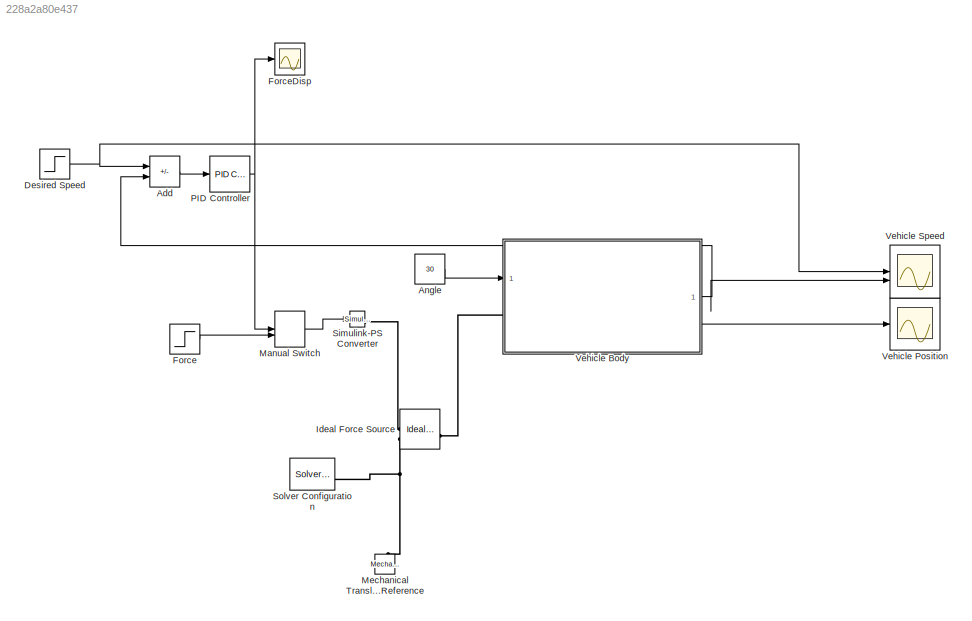
MODEL slx_228a2a80e437
KIND model
CONFIG AbsTol = 1e-3
CONFIG EnableMultiTasking = off
CONFIG FixedStep = auto
CONFIG MaxStep = auto
CONFIG MinStep = auto
CONFIG RelTol = 1e-3
CONFIG SampleTimeConstraint = Unconstrained
CONFIG SolverName = ode15s
CONFIG StartTime = 0.0
CONFIG StopTime = 30
BLOCK [Sum] Add
  IconShape = rectangular
  Inputs = +-
BLOCK [Constant] Angle
  Value = 30
BLOCK [Step] Desired Speed
  After = 15
  Before = 15
  SampleTime = 0
BLOCK [Step] Force
  After = 7000
  SampleTime = 0
BLOCK [Scope] ForceDisp
  Floating = off
  NumInputPorts = 1
  ScopeSpecificationString = Simulink.scopes.TimeScopeBlockCfg('CurrentConfiguration', extmgr.ConfigurationSet(extmgr.Configuration('Core','General UI',true),extmgr.Configuration('Core','Source UI',true),extmgr.Configuration('Sources','WiredSimulink',true,'DataLoggingVariableName','ScopeData2'),extmgr.Configuration('Visuals','Time Domain',true,'SerializedDisplays',{struct('MinYLimReal','-7969.2187','MaxYLimReal','71737.96828'...<+1486ch>
BLOCK [Reference] Ideal Force Source  REF=fl_lib/Mechanical/Mechanical Sources/Ideal Force Source
  SourceBlock = fl_lib/Mechanical/Mechanical Sources/Ideal Force Source
  SourceType = Ideal Force Source
BLOCK [ManualSwitch] Manual Switch
BLOCK [Reference] Mechanical Translational Reference  REF=fl_lib/Mechanical/Translational
Elements/Mechanical
Translational
Reference
  NameLocation = right
  SourceBlock = fl_lib/Mechanical/Translational\nElements/Mechanical\nTranslational\nReference
  SourceType = Mechanical\nTranslational\nReference
BLOCK [Reference] PID Controller  REF=slpidlib/PID Controller
  LibrarySourceBlock = simulink/Continuous/PID Controller
  SourceBlock = slpidlib/PID Controller
  SourceType = PID 1dof
BLOCK [Reference] Simulink-PS Converter  REF=nesl_utility/Simulink-PS
Converter
  SourceBlock = nesl_utility/Simulink-PS\nConverter
  SourceType = Simulink-PS\nConverter
BLOCK [Reference] Solver Configuration  REF=nesl_utility/Solver
Configuration
  SourceBlock = nesl_utility/Solver\nConfiguration
  SourceType = Solver\nConfiguration
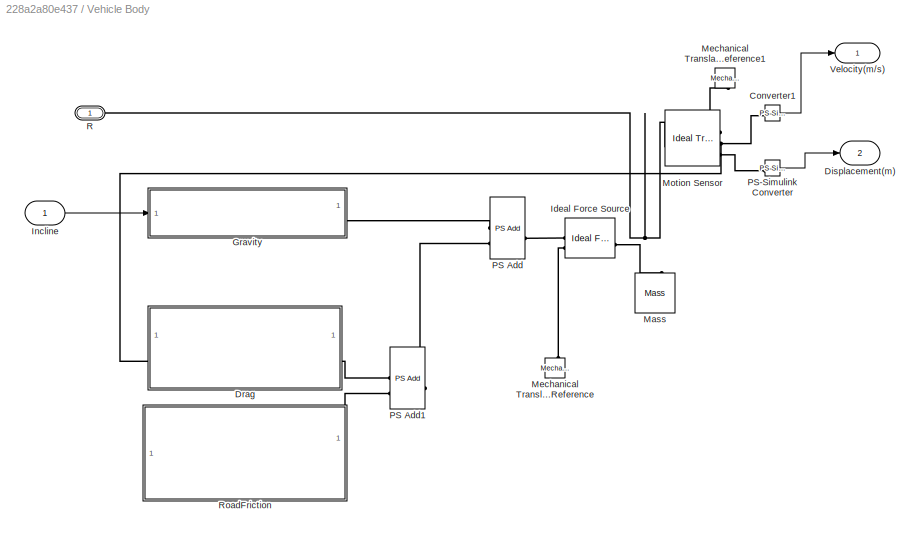
BLOCK [SubSystem] Vehicle Body
BLOCK [Reference] Vehicle Body/Converter1  REF=nesl_utility/PS-Simulink
Converter
  SourceBlock = nesl_utility/PS-Simulink\nConverter
  SourceType = PS-Simulink\nConverter
BLOCK [Outport] Vehicle Body/Displacement(m)
  Port = 2
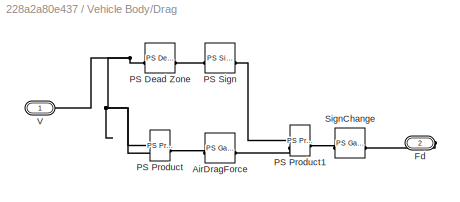
BLOCK [SubSystem] Vehicle Body/Drag
BLOCK [Reference] Vehicle Body/Drag/AirDragForce  REF=fl_lib/Physical Signals/Functions/PS Gain
  SourceBlock = fl_lib/Physical Signals/Functions/PS Gain
  SourceType = PS Gain
BLOCK [PMIOPort] Vehicle Body/Drag/Fd
  Port = 2
  Side = Right
BLOCK [Reference] Vehicle Body/Drag/PS Dead Zone  REF=fl_lib/Physical Signals/Nonlinear Operators/PS Dead Zone
  SourceBlock = fl_lib/Physical Signals/Nonlinear Operators/PS Dead Zone
  SourceType = PS Dead Zone
BLOCK [Reference] Vehicle Body/Drag/PS Product  REF=fl_lib/Physical Signals/Functions/PS Product
  SourceBlock = fl_lib/Physical Signals/Functions/PS Product
  SourceType = PS Product
BLOCK [Reference] Vehicle Body/Drag/PS Product1  REF=fl_lib/Physical Signals/Functions/PS Product
  SourceBlock = fl_lib/Physical Signals/Functions/PS Product
  SourceType = PS Product
BLOCK [Reference] Vehicle Body/Drag/PS Sign  REF=fl_lib/Physical Signals/Nonlinear Operators/PS Sign
  SourceBlock = fl_lib/Physical Signals/Nonlinear Operators/PS Sign
  SourceType = PS Sign
BLOCK [Reference] Vehicle Body/Drag/SignChange  REF=fl_lib/Physical Signals/Functions/PS Gain
  SourceBlock = fl_lib/Physical Signals/Functions/PS Gain
  SourceType = PS Gain
BLOCK [PMIOPort] Vehicle Body/Drag/V
  Side = Left
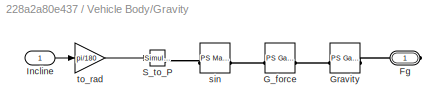
BLOCK [SubSystem] Vehicle Body/Gravity
BLOCK [PMIOPort] Vehicle Body/Gravity/Fg
  Side = Right
BLOCK [Reference] Vehicle Body/Gravity/G_force  REF=fl_lib/Physical Signals/Functions/PS Gain
  SourceBlock = fl_lib/Physical Signals/Functions/PS Gain
  SourceType = PS Gain
BLOCK [Reference] Vehicle Body/Gravity/Gravity  REF=fl_lib/Physical Signals/Functions/PS Gain
  SourceBlock = fl_lib/Physical Signals/Functions/PS Gain
  SourceType = PS Gain
BLOCK [Inport] Vehicle Body/Gravity/Incline
BLOCK [Reference] Vehicle Body/Gravity/S_to_P  REF=nesl_utility/Simulink-PS
Converter
  SourceBlock = nesl_utility/Simulink-PS\nConverter
  SourceType = Simulink-PS\nConverter
BLOCK [Reference] Vehicle Body/Gravity/sin  REF=fl_lib/Physical Signals/Functions/PS Math Function
  SourceBlock = fl_lib/Physical Signals/Functions/PS Math Function
  SourceType = PS Math Function
BLOCK [Gain] Vehicle Body/Gravity/to_rad
  Gain = pi/180
BLOCK [Reference] Vehicle Body/Ideal Force Source  REF=fl_lib/Mechanical/Mechanical Sources/Ideal Force Source
  SourceBlock = fl_lib/Mechanical/Mechanical Sources/Ideal Force Source
  SourceType = Ideal Force Source
BLOCK [Inport] Vehicle Body/Incline
BLOCK [Reference] Vehicle Body/Mass  REF=fl_lib/Mechanical/Translational
Elements/Mass
  NameLocation = right
  SourceBlock = fl_lib/Mechanical/Translational\nElements/Mass
  SourceType = Mass
BLOCK [Reference] Vehicle Body/Mechanical Translational Reference  REF=fl_lib/Mechanical/Translational
Elements/Mechanical
Translational
Reference
  NameLocation = right
  SourceBlock = fl_lib/Mechanical/Translational\nElements/Mechanical\nTranslational\nReference
  SourceType = Mechanical\nTranslational\nReference
BLOCK [Reference] Vehicle Body/Mechanical Translational Reference1  REF=fl_lib/Mechanical/Translational
Elements/Mechanical
Translational
Reference
  NameLocation = left
  SourceBlock = fl_lib/Mechanical/Translational\nElements/Mechanical\nTranslational\nReference
  SourceType = Mechanical\nTranslational\nReference
BLOCK [Reference] Vehicle Body/Motion Sensor  REF=fl_lib/Mechanical/Mechanical Sensors/Ideal Translational
Motion Sensor
  SourceBlock = fl_lib/Mechanical/Mechanical Sensors/Ideal Translational\nMotion Sensor
  SourceType = Ideal Translational\nMotion Sensor
BLOCK [Reference] Vehicle Body/PS Add  REF=fl_lib/Physical Signals/Functions/PS Add
  SourceBlock = fl_lib/Physical Signals/Functions/PS Add
  SourceType = PS Add
BLOCK [Reference] Vehicle Body/PS Add1  REF=fl_lib/Physical Signals/Functions/PS Add
  SourceBlock = fl_lib/Physical Signals/Functions/PS Add
  SourceType = PS Add
BLOCK [Reference] Vehicle Body/PS-Simulink Converter  REF=nesl_utility/PS-Simulink
Converter
  SourceBlock = nesl_utility/PS-Simulink\nConverter
  SourceType = PS-Simulink\nConverter
BLOCK [PMIOPort] Vehicle Body/R
  Side = Left
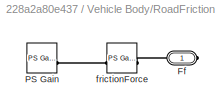
BLOCK [SubSystem] Vehicle Body/RoadFriction
BLOCK [PMIOPort] Vehicle Body/RoadFriction/Ff
  Side = Right
BLOCK [Reference] Vehicle Body/RoadFriction/PS Gain  REF=fl_lib/Physical Signals/Functions/PS Gain
  SourceBlock = fl_lib/Physical Signals/Functions/PS Gain
  SourceType = PS Gain
BLOCK [Reference] Vehicle Body/RoadFriction/frictionForce  REF=fl_lib/Physical Signals/Functions/PS Gain
  SourceBlock = fl_lib/Physical Signals/Functions/PS Gain
  SourceType = PS Gain
BLOCK [Outport] Vehicle Body/Velocity(m//s)
BLOCK [Scope] Vehicle Position
  Floating = off
  NameLocation = right
  NumInputPorts = 1
  ScopeSpecificationString = Simulink.scopes.TimeScopeBlockCfg('CurrentConfiguration', extmgr.ConfigurationSet(extmgr.Configuration('Core','General UI',true),extmgr.Configuration('Core','Source UI',true),extmgr.Configuration('Sources','WiredSimulink',true,'DataLoggingVariableName','ScopeData1'),extmgr.Configuration('Visuals','Time Domain',true,'SerializedDisplays',{struct('MinYLimReal','-54.46621','MaxYLimReal','489.94896','Y...<+1501ch>
BLOCK [Scope] Vehicle Speed
  Floating = off
  NameLocation = right
  NumInputPorts = 2
  ScopeSpecificationString = Simulink.scopes.TimeScopeBlockCfg('CurrentConfiguration', extmgr.ConfigurationSet(extmgr.Configuration('Core','General UI',true),extmgr.Configuration('Core','Source UI',true),extmgr.Configuration('Sources','WiredSimulink',true),extmgr.Configuration('Visuals','Time Domain',true,'SerializedDisplays',{struct('MinYLimReal','-2.11836','MaxYLimReal','16.90204','YLabelReal','','MinYLimMag','0.00000','Max...<+1470ch>
LINE Add:1 -> PID Controller:1
LINE Angle:1 -> Vehicle Body:1
NET Desired Speed:1 -> Add:1, Vehicle Speed:1
LINE Force:1 -> Manual Switch:2
LINE Manual Switch:1 -> Simulink-PS Converter:1
NET PID Controller:1 -> ForceDisp:1, Manual Switch:1
LINE Vehicle Body/Converter1:1 -> Vehicle Body/Velocity(m//s):1
LINE Vehicle Body/Gravity/Incline:1 -> Vehicle Body/Gravity/to_rad:1
LINE Vehicle Body/Gravity/to_rad:1 -> Vehicle Body/Gravity/S_to_P:1
LINE Vehicle Body/Incline:1 -> Vehicle Body/Gravity:1
LINE Vehicle Body/PS-Simulink Converter:1 -> Vehicle Body/Displacement(m):1
NET Vehicle Body:1 -> Add:2, Vehicle Speed:2
LINE Vehicle Body:2 -> Vehicle Position:1
PLINE Ideal Force Source:LConn1 -- Vehicle Body:LConn1
PLINE Ideal Force Source:RConn1 -- Simulink-PS Converter:RConn1
PNET net1: Ideal Force Source:RConn2 -- Mechanical Translational Reference:LConn1 -- Solver Configuration:RConn1
PNET net2: Vehicle Body/Converter1:LConn1 -- Vehicle Body/Drag:LConn1 -- Vehicle Body/Motion Sensor:RConn2
PLINE Vehicle Body/Drag/AirDragForce:LConn1 -- Vehicle Body/Drag/PS Product:RConn1
PLINE Vehicle Body/Drag/AirDragForce:RConn1 -- Vehicle Body/Drag/PS Product1:LConn2
PLINE Vehicle Body/Drag/Fd:RConn1 -- Vehicle Body/Drag/SignChange:RConn1
PNET net3: Vehicle Body/Drag/PS Dead Zone:LConn1 -- Vehicle Body/Drag/PS Product:LConn1 -- Vehicle Body/Drag/PS Product:LConn2 -- Vehicle Body/Drag/V:RConn1
PLINE Vehicle Body/Drag/PS Dead Zone:RConn1 -- Vehicle Body/Drag/PS Sign:LConn1
PLINE Vehicle Body/Drag/PS Product1:LConn1 -- Vehicle Body/Drag/PS Sign:RConn1
PLINE Vehicle Body/Drag/PS Product1:RConn1 -- Vehicle Body/Drag/SignChange:LConn1
PLINE Vehicle Body/Drag:RConn1 -- Vehicle Body/PS Add1:LConn1
PLINE Vehicle Body/Gravity/Fg:RConn1 -- Vehicle Body/Gravity/Gravity:RConn1
PLINE Vehicle Body/Gravity/G_force:LConn1 -- Vehicle Body/Gravity/sin:RConn1
PLINE Vehicle Body/Gravity/G_force:RConn1 -- Vehicle Body/Gravity/Gravity:LConn1
PLINE Vehicle Body/Gravity/S_to_P:RConn1 -- Vehicle Body/Gravity/sin:LConn1
PLINE Vehicle Body/Gravity:RConn1 -- Vehicle Body/PS Add:LConn1
PNET net4: Vehicle Body/Ideal Force Source:LConn1 -- Vehicle Body/Mass:LConn1 -- Vehicle Body/Motion Sensor:LConn1 -- Vehicle Body/R:RConn1
PLINE Vehicle Body/Ideal Force Source:RConn1 -- Vehicle Body/PS Add:RConn1
PLINE Vehicle Body/Ideal Force Source:RConn2 -- Vehicle Body/Mechanical Translational Reference:LConn1
PLINE Vehicle Body/Mechanical Translational Reference1:LConn1 -- Vehicle Body/Motion Sensor:RConn1
PLINE Vehicle Body/Motion Sensor:RConn3 -- Vehicle Body/PS-Simulink Converter:LConn1
PLINE Vehicle Body/PS Add1:LConn2 -- Vehicle Body/RoadFriction:RConn1
PLINE Vehicle Body/PS Add1:RConn1 -- Vehicle Body/PS Add:LConn2
PLINE Vehicle Body/RoadFriction/Ff:RConn1 -- Vehicle Body/RoadFriction/frictionForce:RConn1
PLINE Vehicle Body/RoadFriction/PS Gain:RConn1 -- Vehicle Body/RoadFriction/frictionForce:LConn1
note: NET lines group one-source signal fan-out (src -> all destinations, sorted); 1:1 wires keep LINE; PNET lines group multi-terminal physical nets as a canonical sorted terminal list (undirected conserving connections); 2-terminal nets keep the pairwise PLINE form
